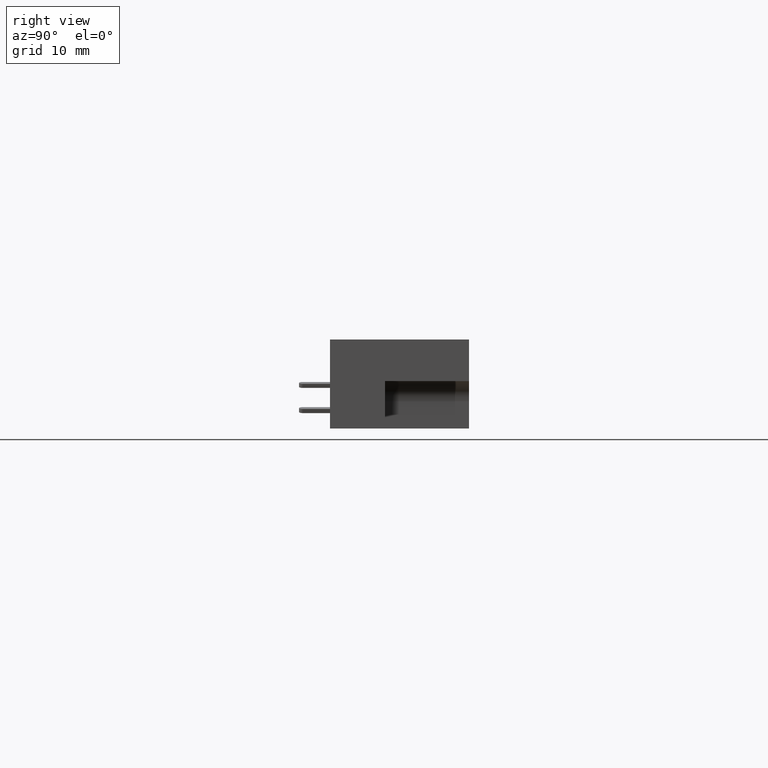
[diagram: clean part render]
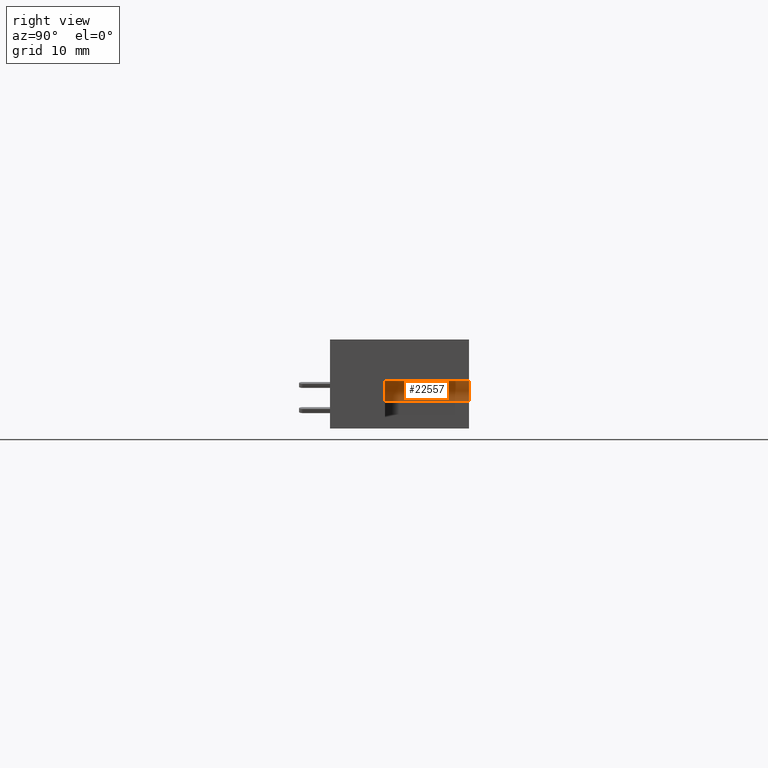
[diagram: same view with one face highlighted and labeled with its STEP entity id]
A machine part, right view. The second image highlights one B-rep face of the part: STEP entity #22557.
In plain terms, the highlighted cylindrical surface (edge-blend (fillet) strip) has radius 3.048 mm, axis along (0, 1, 0).
Its self-contained STEP definition (entity closure, byte-faithful):
#54 = AXIS2_PLACEMENT_3D ( 'NONE', #24357, #24555, #20060 ) ;
#835 = VERTEX_POINT ( 'NONE', #2995 ) ;
#842 = FACE_OUTER_BOUND ( 'NONE', #20451, .T. ) ;
#1602 = DIRECTION ( 'NONE',  ( 0.0000000000000000000, 0.0000000000000000000, 1.000000000000000000 ) ) ;
#2148 = CARTESIAN_POINT ( 'NONE',  ( 3.950000000000000200, 0.8280000000000000700, -0.3679999999999999900 ) ) ;
#2733 = DIRECTION ( 'NONE',  ( -0.0000000000000000000, 1.000000000000000000, -0.0000000000000000000 ) ) ;
#2995 = CARTESIAN_POINT ( 'NONE',  ( 4.069999999999999400, 0.8280000000000000700, -0.2479999999999999700 ) ) ;
#3291 = VERTEX_POINT ( 'NONE', #22505 ) ;
#4210 = CIRCLE ( 'NONE', #17957, 0.1199999999999996800 ) ;
#6241 = CYLINDRICAL_SURFACE ( 'NONE', #9240, 0.1199999999999996800 ) ;
#7463 = VERTEX_POINT ( 'NONE', #2148 ) ;
#7756 = DIRECTION ( 'NONE',  ( -0.0000000000000000000, 1.000000000000000000, -0.0000000000000000000 ) ) ;
#8700 = CARTESIAN_POINT ( 'NONE',  ( 3.950000000000000200, 0.3280000000000000100, -0.3679999999999999900 ) ) ;
#9240 = AXIS2_PLACEMENT_3D ( 'NONE', #22951, #7756, #9923 ) ;
#9362 = CARTESIAN_POINT ( 'NONE',  ( 4.069999999999999400, 0.3280000000000000100, -0.3679999999999999900 ) ) ;
#9677 = CARTESIAN_POINT ( 'NONE',  ( 4.069999999999999400, 0.3280000000000000100, -0.2479999999999999700 ) ) ;
#9754 = EDGE_CURVE ( 'NONE', #17406, #3291, #4210, .T. ) ;
#9923 = DIRECTION ( 'NONE',  ( 0.0000000000000000000, 0.0000000000000000000, 1.000000000000000000 ) ) ;
#11153 = CIRCLE ( 'NONE', #54, 0.1199999999999996800 ) ;
#11163 = ORIENTED_EDGE ( 'NONE', *, *, #9754, .F. ) ;
#11877 = DIRECTION ( 'NONE',  ( -0.0000000000000000000, 1.000000000000000000, -0.0000000000000000000 ) ) ;
#11941 = LINE ( 'NONE', #9677, #15720 ) ;
#13015 = EDGE_CURVE ( 'NONE', #17406, #7463, #20004, .T. ) ;
#15720 = VECTOR ( 'NONE', #11877, 39.37007874015748100 ) ;
#15757 = CARTESIAN_POINT ( 'NONE',  ( 3.950000000000000200, 0.3280000000000000100, -0.3679999999999999900 ) ) ;
#16084 = EDGE_CURVE ( 'NONE', #3291, #835, #11941, .T. ) ;
#16278 = VECTOR ( 'NONE', #2733, 39.37007874015748100 ) ;
#17406 = VERTEX_POINT ( 'NONE', #8700 ) ;
#17957 = AXIS2_PLACEMENT_3D ( 'NONE', #9362, #26875, #1602 ) ;
#18728 = ORIENTED_EDGE ( 'NONE', *, *, #13015, .T. ) ;
#20004 = LINE ( 'NONE', #15757, #16278 ) ;
#20060 = DIRECTION ( 'NONE',  ( 0.0000000000000000000, 0.0000000000000000000, 1.000000000000000000 ) ) ;
#20146 = ORIENTED_EDGE ( 'NONE', *, *, #16084, .F. ) ;
#20451 = EDGE_LOOP ( 'NONE', ( #23587, #20146, #11163, #18728 ) ) ;
#22505 = CARTESIAN_POINT ( 'NONE',  ( 4.069999999999999400, 0.3280000000000000100, -0.2479999999999999700 ) ) ;
#22557 = ADVANCED_FACE ( 'NONE', ( #842 ), #6241, .F. ) ;
#22951 = CARTESIAN_POINT ( 'NONE',  ( 4.069999999999999400, 0.3280000000000000100, -0.3679999999999999900 ) ) ;
#23587 = ORIENTED_EDGE ( 'NONE', *, *, #25973, .T. ) ;
#24357 = CARTESIAN_POINT ( 'NONE',  ( 4.069999999999999400, 0.8280000000000000700, -0.3679999999999999900 ) ) ;
#24555 = DIRECTION ( 'NONE',  ( 0.0000000000000000000, 1.000000000000000000, 0.0000000000000000000 ) ) ;
#25973 = EDGE_CURVE ( 'NONE', #7463, #835, #11153, .T. ) ;
#26875 = DIRECTION ( 'NONE',  ( 0.0000000000000000000, 1.000000000000000000, 0.0000000000000000000 ) ) ;